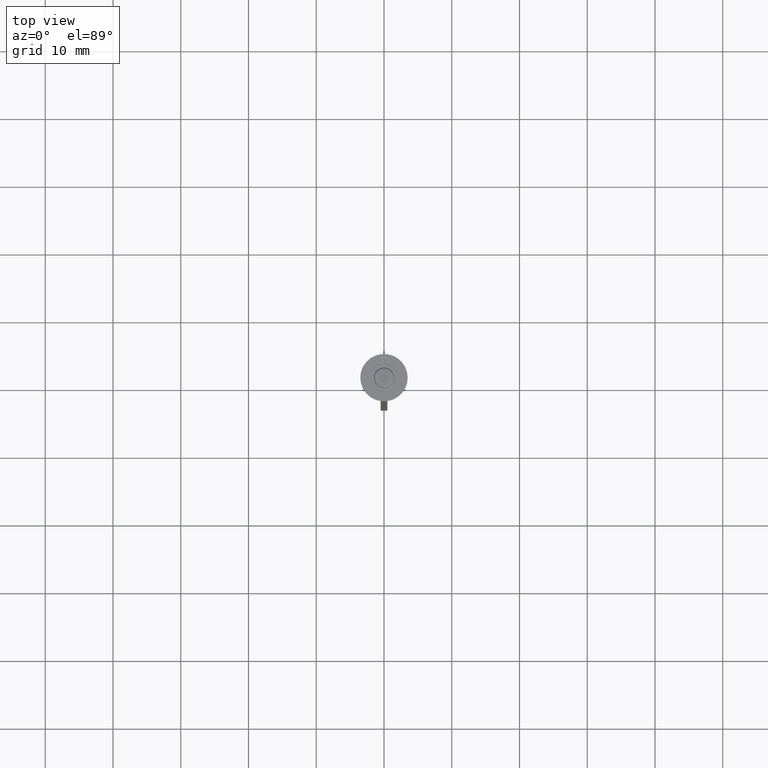
[diagram: clean part render]
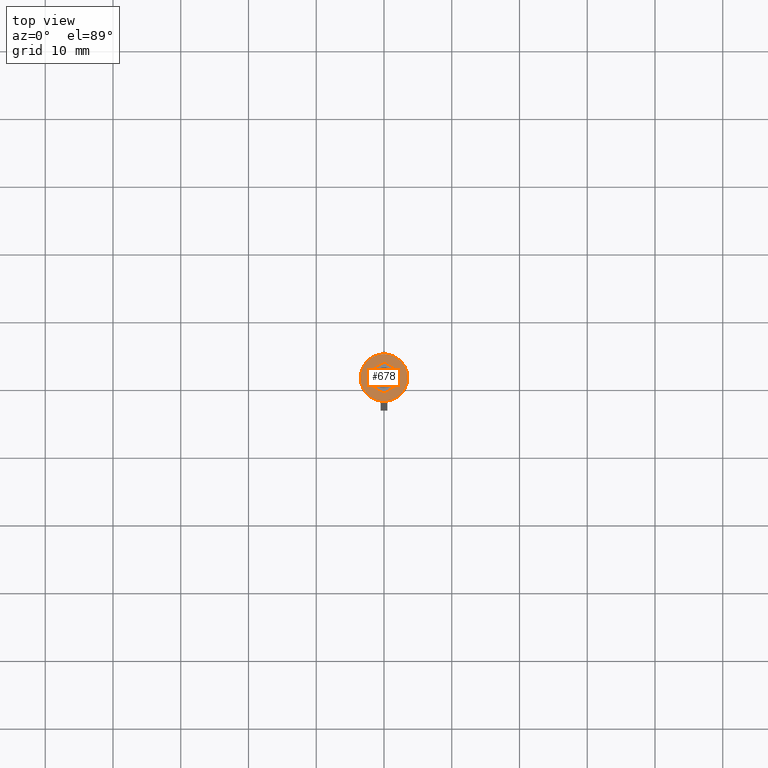
[diagram: same view with one face highlighted and labeled with its STEP entity id]
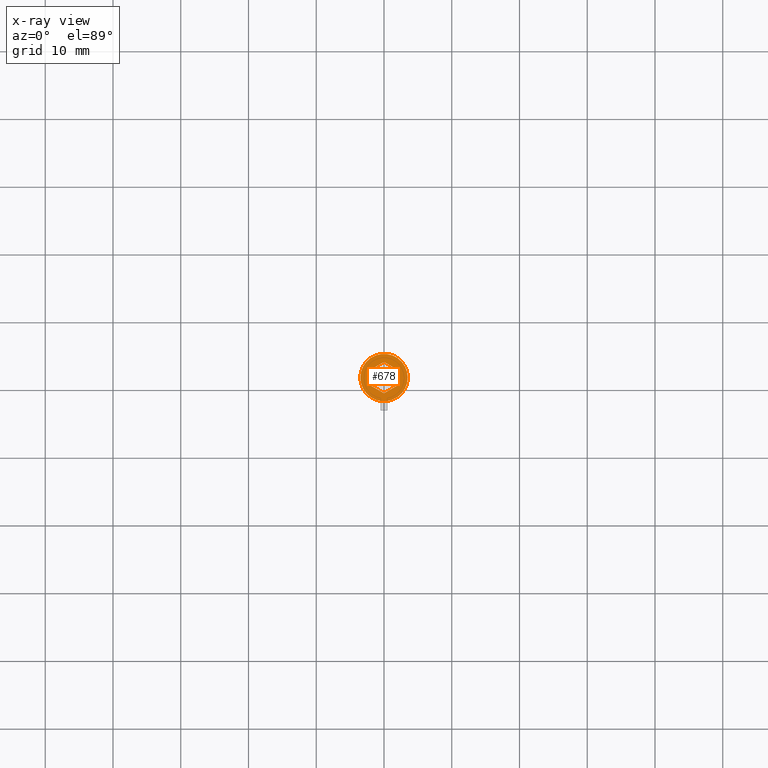
[diagram: x-ray of the same camera — body ghosted, the highlighted face saturated]
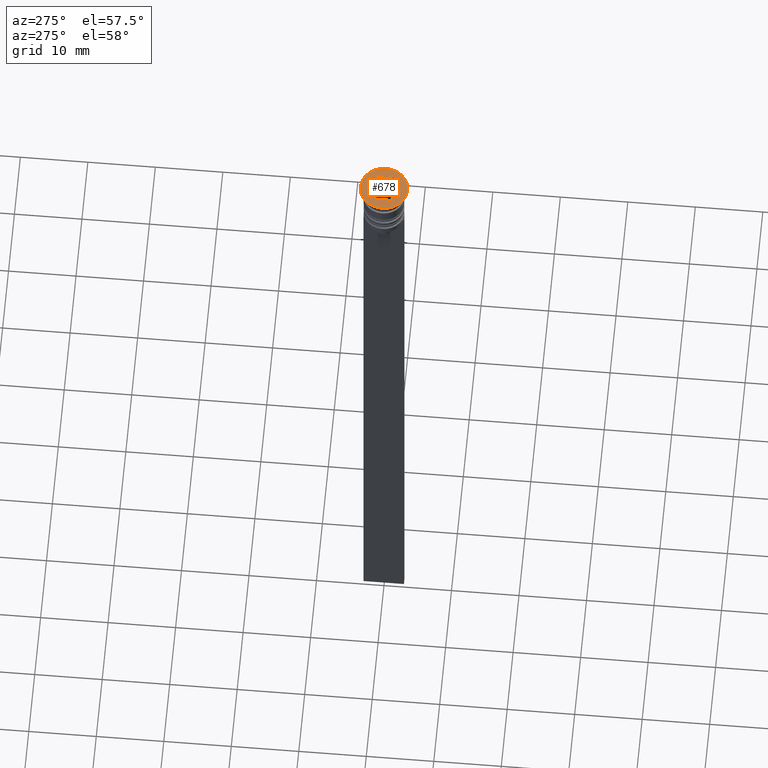
[diagram: same view with one face highlighted and labeled with its STEP entity id]
A machine part, top view. The second image highlights one B-rep face of the part: STEP entity #678.
The next image is the same camera in x-ray: the body ghosted, the highlighted face saturated — about 0% of this face is hidden behind the body in this view.
A second angle (auxiliary view) of the same face is appended — the face is thin or edge-on in the first view.
In plain terms, the highlighted planar face has unit normal (0, -0, 1).
Its self-contained STEP definition (entity closure, byte-faithful):
#2 = CARTESIAN_POINT ( 'NONE',  ( -2.000000000000000000, 1.154700538379251018, 0.000000000000000000 ) ) ;
#46 = VERTEX_POINT ( 'NONE', #2037 ) ;
#143 = EDGE_CURVE ( 'NONE', #1650, #2262, #1781, .T. ) ;
#153 = CARTESIAN_POINT ( 'NONE',  ( 0.000000000000000000, 2.309401076758502480, 0.000000000000000000 ) ) ;
#224 = CARTESIAN_POINT ( 'NONE',  ( 3.997386383800531884E-16, -2.309401076758503368, 0.000000000000000000 ) ) ;
#236 = CARTESIAN_POINT ( 'NONE',  ( -3.500000000000000000, 4.286263797015736595E-16, 0.000000000000000000 ) ) ;
#285 = EDGE_CURVE ( 'NONE', #324, #2322, #1453, .T. ) ;
#315 = ORIENTED_EDGE ( 'NONE', *, *, #1957, .F. ) ;
#324 = VERTEX_POINT ( 'NONE', #1965 ) ;
#325 = DIRECTION ( 'NONE',  ( 1.000000000000000000, 0.000000000000000000, 0.000000000000000000 ) ) ;
#374 = PLANE ( 'NONE',  #584 ) ;
#376 = ORIENTED_EDGE ( 'NONE', *, *, #143, .T. ) ;
#381 = ORIENTED_EDGE ( 'NONE', *, *, #894, .F. ) ;
#467 = VECTOR ( 'NONE', #2041, 1000.000000000000227 ) ;
#480 = CARTESIAN_POINT ( 'NONE',  ( -2.168404344971008868E-16, 2.309401076758502480, 0.000000000000000000 ) ) ;
#535 = EDGE_CURVE ( 'NONE', #2322, #945, #2267, .T. ) ;
#536 = DIRECTION ( 'NONE',  ( 1.000000000000000000, 0.000000000000000000, 0.000000000000000000 ) ) ;
#584 = AXIS2_PLACEMENT_3D ( 'NONE', #734, #2320, #536 ) ;
#670 = VERTEX_POINT ( 'NONE', #480 ) ;
#678 = ADVANCED_FACE ( 'NONE', ( #2294, #1047 ), #374, .T. ) ;
#684 = DIRECTION ( 'NONE',  ( -0.8660254037844387076, -0.4999999999999999445, 0.000000000000000000 ) ) ;
#734 = CARTESIAN_POINT ( 'NONE',  ( 0.000000000000000000, 0.000000000000000000, 0.000000000000000000 ) ) ;
#844 = CARTESIAN_POINT ( 'NONE',  ( 2.000000000000000000, -1.154700538379251684, 0.000000000000000000 ) ) ;
#867 = DIRECTION ( 'NONE',  ( -0.000000000000000000, -0.000000000000000000, 1.000000000000000000 ) ) ;
#894 = EDGE_CURVE ( 'NONE', #945, #1110, #1275, .T. ) ;
#945 = VERTEX_POINT ( 'NONE', #224 ) ;
#967 = ORIENTED_EDGE ( 'NONE', *, *, #285, .F. ) ;
#1034 = VECTOR ( 'NONE', #1198, 1000.000000000000000 ) ;
#1038 = DIRECTION ( 'NONE',  ( 0.8660254037844387076, -0.4999999999999997780, 0.000000000000000000 ) ) ;
#1047 = FACE_OUTER_BOUND ( 'NONE', #1784, .T. ) ;
#1060 = DIRECTION ( 'NONE',  ( 0.000000000000000000, -1.000000000000000000, 0.000000000000000000 ) ) ;
#1089 = DIRECTION ( 'NONE',  ( 1.000000000000000000, 0.000000000000000000, 0.000000000000000000 ) ) ;
#1110 = VERTEX_POINT ( 'NONE', #1218 ) ;
#1127 = EDGE_CURVE ( 'NONE', #670, #324, #1282, .T. ) ;
#1198 = DIRECTION ( 'NONE',  ( 0.000000000000000000, 1.000000000000000000, 0.000000000000000000 ) ) ;
#1218 = CARTESIAN_POINT ( 'NONE',  ( 2.000000000000000000, -1.154700538379251684, 0.000000000000000000 ) ) ;
#1275 = LINE ( 'NONE', #2221, #467 ) ;
#1282 = LINE ( 'NONE', #153, #2268 ) ;
#1296 = CIRCLE ( 'NONE', #1590, 3.500000000000000000 ) ;
#1309 = ORIENTED_EDGE ( 'NONE', *, *, #1127, .F. ) ;
#1361 = LINE ( 'NONE', #1956, #2156 ) ;
#1374 = LINE ( 'NONE', #844, #1034 ) ;
#1386 = DIRECTION ( 'NONE',  ( -0.8660254037844387076, 0.4999999999999998890, 0.000000000000000000 ) ) ;
#1390 = CARTESIAN_POINT ( 'NONE',  ( -2.000000000000000000, -1.154700538379252128, 0.000000000000000000 ) ) ;
#1453 = LINE ( 'NONE', #2, #1549 ) ;
#1486 = EDGE_CURVE ( 'NONE', #46, #670, #1361, .T. ) ;
#1549 = VECTOR ( 'NONE', #1060, 1000.000000000000000 ) ;
#1562 = CARTESIAN_POINT ( 'NONE',  ( 0.000000000000000000, 0.000000000000000000, 0.000000000000000000 ) ) ;
#1590 = AXIS2_PLACEMENT_3D ( 'NONE', #1963, #1825, #1089 ) ;
#1650 = VERTEX_POINT ( 'NONE', #1990 ) ;
#1664 = AXIS2_PLACEMENT_3D ( 'NONE', #1562, #867, #325 ) ;
#1712 = ORIENTED_EDGE ( 'NONE', *, *, #2003, .T. ) ;
#1752 = CARTESIAN_POINT ( 'NONE',  ( -2.000000000000000000, -1.154700538379252128, 0.000000000000000000 ) ) ;
#1781 = CIRCLE ( 'NONE', #1664, 3.500000000000000000 ) ;
#1784 = EDGE_LOOP ( 'NONE', ( #376, #1712 ) ) ;
#1825 = DIRECTION ( 'NONE',  ( -0.000000000000000000, -0.000000000000000000, 1.000000000000000000 ) ) ;
#1844 = ORIENTED_EDGE ( 'NONE', *, *, #535, .F. ) ;
#1940 = ORIENTED_EDGE ( 'NONE', *, *, #1486, .F. ) ;
#1956 = CARTESIAN_POINT ( 'NONE',  ( 2.000000000000000000, 1.154700538379251240, 0.000000000000000000 ) ) ;
#1957 = EDGE_CURVE ( 'NONE', #1110, #46, #1374, .T. ) ;
#1963 = CARTESIAN_POINT ( 'NONE',  ( 0.000000000000000000, 0.000000000000000000, 0.000000000000000000 ) ) ;
#1965 = CARTESIAN_POINT ( 'NONE',  ( -2.000000000000000000, 1.154700538379251018, 0.000000000000000000 ) ) ;
#1990 = CARTESIAN_POINT ( 'NONE',  ( 3.500000000000000000, 0.000000000000000000, 0.000000000000000000 ) ) ;
#2003 = EDGE_CURVE ( 'NONE', #2262, #1650, #1296, .T. ) ;
#2037 = CARTESIAN_POINT ( 'NONE',  ( 2.000000000000000000, 1.154700538379251240, 0.000000000000000000 ) ) ;
#2041 = DIRECTION ( 'NONE',  ( 0.8660254037844384856, 0.5000000000000001110, 0.000000000000000000 ) ) ;
#2096 = EDGE_LOOP ( 'NONE', ( #1940, #315, #381, #1844, #967, #1309 ) ) ;
#2156 = VECTOR ( 'NONE', #1386, 1000.000000000000000 ) ;
#2221 = CARTESIAN_POINT ( 'NONE',  ( 3.997386383800531884E-16, -2.309401076758503368, 0.000000000000000000 ) ) ;
#2262 = VERTEX_POINT ( 'NONE', #236 ) ;
#2267 = LINE ( 'NONE', #1390, #2313 ) ;
#2268 = VECTOR ( 'NONE', #684, 1000.000000000000000 ) ;
#2294 = FACE_BOUND ( 'NONE', #2096, .T. ) ;
#2313 = VECTOR ( 'NONE', #1038, 1000.000000000000114 ) ;
#2320 = DIRECTION ( 'NONE',  ( 0.000000000000000000, -0.000000000000000000, 1.000000000000000000 ) ) ;
#2322 = VERTEX_POINT ( 'NONE', #1752 ) ;